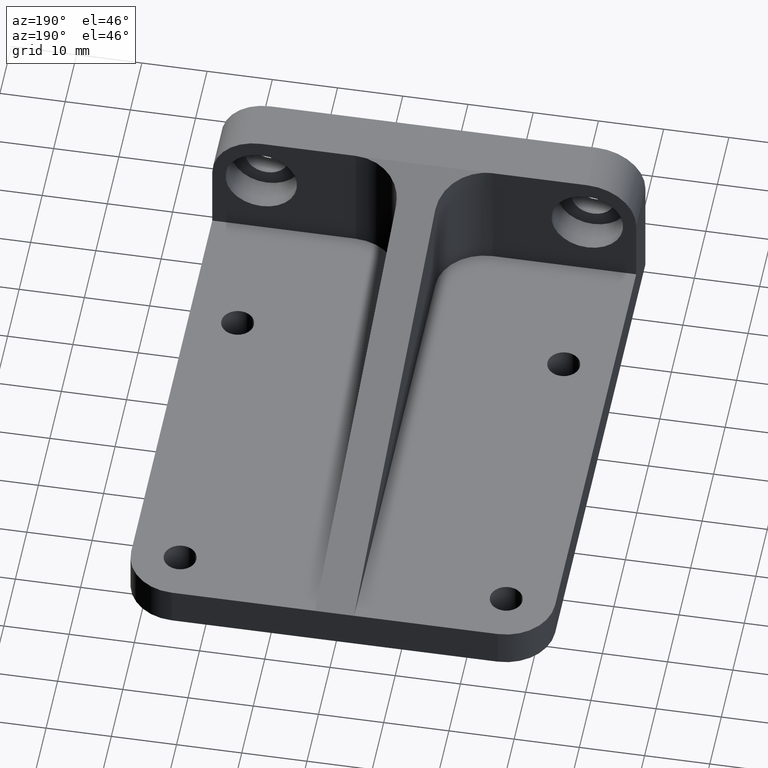
[diagram: clean part render]
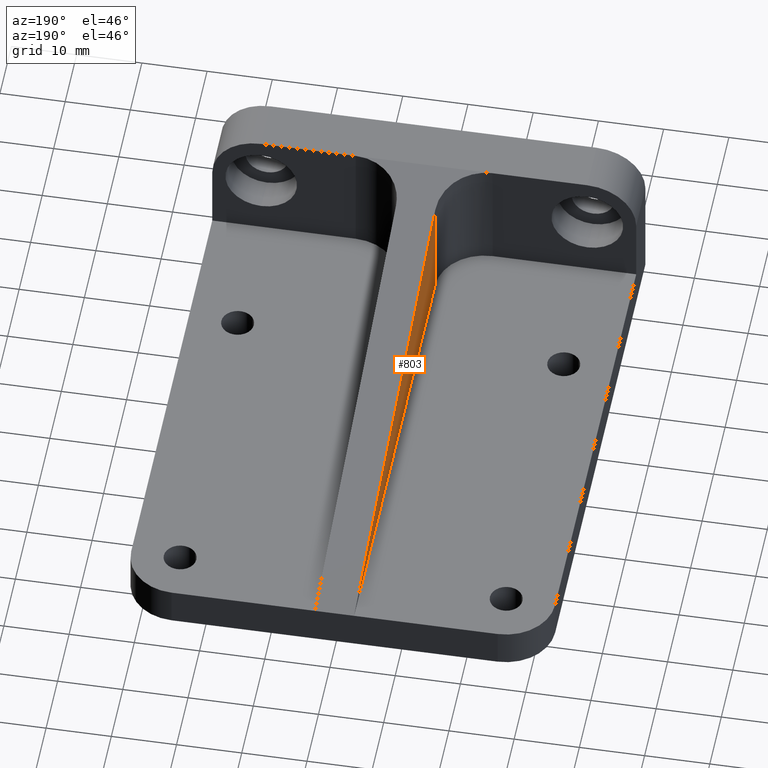
[diagram: same view with one face highlighted and labeled with its STEP entity id]
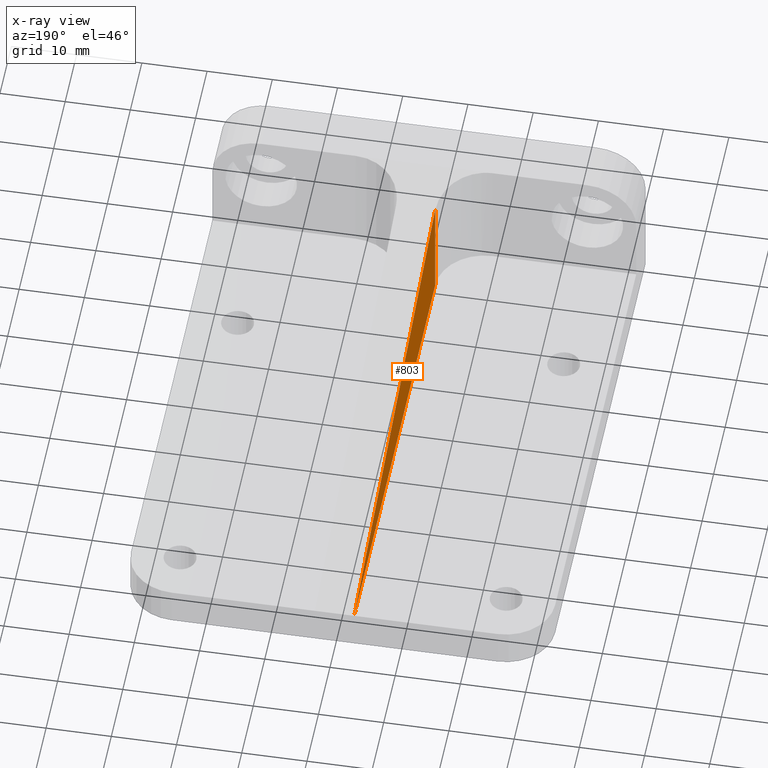
[diagram: x-ray of the same camera — body ghosted, the highlighted face saturated]
A machine part, auxiliary view. The second image highlights one B-rep face of the part: STEP entity #803.
The next image is the same camera in x-ray: the body ghosted, the highlighted face saturated — about 0% of this face is hidden behind the body in this view.
In plain terms, the highlighted planar face has unit normal (1, 0, 0).
Its self-contained STEP definition (entity closure, byte-faithful):
#67 = LINE ( 'NONE', #168, #331 ) ;
#87 = PLANE ( 'NONE',  #563 ) ;
#98 = CARTESIAN_POINT ( 'NONE',  ( -2.999999999999988898, 7.999999999999996447, -83.39214591314942027 ) ) ;
#112 = EDGE_LOOP ( 'NONE', ( #1050, #894, #686 ) ) ;
#160 = DIRECTION ( 'NONE',  ( -0.0000000000000000000, 0.0000000000000000000, 1.000000000000000000 ) ) ;
#168 = CARTESIAN_POINT ( 'NONE',  ( -2.999999999999991562, 15.49999999999999822, 23.99999999999999289 ) ) ;
#172 = CARTESIAN_POINT ( 'NONE',  ( -2.999999999999988898, 7.999999999999996447, 6.000000000000005329 ) ) ;
#197 = VERTEX_POINT ( 'NONE', #429 ) ;
#331 = VECTOR ( 'NONE', #160, 1000.000000000000000 ) ;
#388 = CARTESIAN_POINT ( 'NONE',  ( -3.000000000000009770, 85.99999999999998579, 6.000000000000002665 ) ) ;
#429 = CARTESIAN_POINT ( 'NONE',  ( -2.999999999999987566, 15.49999999999998579, 22.26923076923077360 ) ) ;
#483 = VERTEX_POINT ( 'NONE', #505 ) ;
#505 = CARTESIAN_POINT ( 'NONE',  ( -2.999999999999991118, 15.49999999999999822, 6.000000000000005329 ) ) ;
#525 = DIRECTION ( 'NONE',  ( 1.000000000000000000, 3.113606238932730467E-16, 0.0000000000000000000 ) ) ;
#563 = AXIS2_PLACEMENT_3D ( 'NONE', #98, #525, #721 ) ;
#589 = FACE_OUTER_BOUND ( 'NONE', #112, .T. ) ;
#655 = VECTOR ( 'NONE', #1024, 1000.000000000000000 ) ;
#656 = LINE ( 'NONE', #172, #655 ) ;
#678 = EDGE_CURVE ( 'NONE', #816, #197, #1014, .T. ) ;
#686 = ORIENTED_EDGE ( 'NONE', *, *, #678, .F. ) ;
#694 = EDGE_CURVE ( 'NONE', #483, #197, #67, .T. ) ;
#721 = DIRECTION ( 'NONE',  ( -3.113606238932730467E-16, 1.000000000000000000, 0.0000000000000000000 ) ) ;
#803 = ADVANCED_FACE ( 'NONE', ( #589 ), #87, .F. ) ;
#816 = VERTEX_POINT ( 'NONE', #897 ) ;
#846 = EDGE_CURVE ( 'NONE', #816, #483, #656, .T. ) ;
#894 = ORIENTED_EDGE ( 'NONE', *, *, #694, .T. ) ;
#897 = CARTESIAN_POINT ( 'NONE',  ( -3.000000000000012879, 86.00000000000000000, 6.000000000000005329 ) ) ;
#927 = DIRECTION ( 'NONE',  ( 3.033870506075891732E-16, -0.9743911956946198494, 0.2248595066987584823 ) ) ;
#1014 = LINE ( 'NONE', #388, #1053 ) ;
#1024 = DIRECTION ( 'NONE',  ( 3.113606238932730467E-16, -1.000000000000000000, 0.0000000000000000000 ) ) ;
#1050 = ORIENTED_EDGE ( 'NONE', *, *, #846, .T. ) ;
#1053 = VECTOR ( 'NONE', #927, 1000.000000000000114 ) ;